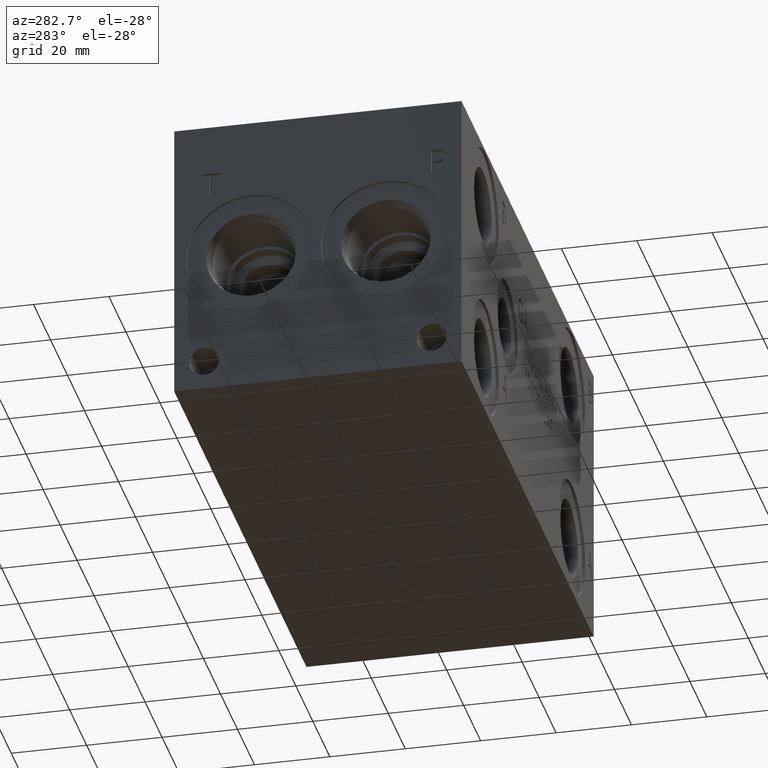
[diagram: clean part render]
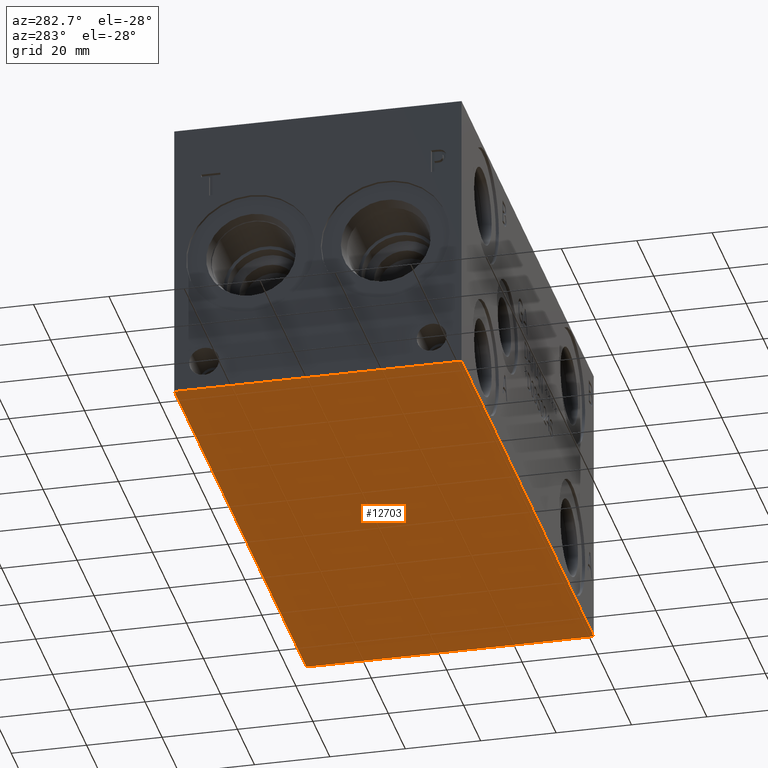
[diagram: same view with one face highlighted and labeled with its STEP entity id]
A machine part, auxiliary view. The second image highlights one B-rep face of the part: STEP entity #12703.
In plain terms, the highlighted planar face has unit normal (0, 0, 1).
Its self-contained STEP definition (entity closure, byte-faithful):
#1698=FACE_OUTER_BOUND('',#2461,.T.);
#2461=EDGE_LOOP('',(#11223,#11224,#11225,#11226));
#2736=LINE('',#18410,#3876);
#3371=LINE('',#20715,#4511);
#3430=LINE('',#20987,#4570);
#3600=LINE('',#21951,#4740);
#3876=VECTOR('',#13931,10.);
#4511=VECTOR('',#15028,10.);
#4570=VECTOR('',#15141,10.);
#4740=VECTOR('',#16241,10.);
#5050=VERTEX_POINT('',#18408);
#5051=VERTEX_POINT('',#18409);
#5562=VERTEX_POINT('',#20714);
#5620=VERTEX_POINT('',#20986);
#6412=EDGE_CURVE('',#5050,#5051,#2736,.T.);
#7173=EDGE_CURVE('',#5051,#5562,#3371,.T.);
#7256=EDGE_CURVE('',#5620,#5050,#3430,.T.);
#7707=EDGE_CURVE('',#5562,#5620,#3600,.T.);
#11223=ORIENTED_EDGE('',*,*,#6412,.F.);
#11224=ORIENTED_EDGE('',*,*,#7256,.F.);
#11225=ORIENTED_EDGE('',*,*,#7707,.F.);
#11226=ORIENTED_EDGE('',*,*,#7173,.F.);
#11581=PLANE('',#13514);
#12703=ADVANCED_FACE('',(#1698),#11581,.F.);
#13514=AXIS2_PLACEMENT_3D('',#21956,#16249,#16250);
#13931=DIRECTION('',(1.,0.,0.));
#15028=DIRECTION('',(0.,1.,0.));
#15141=DIRECTION('',(0.,-1.,0.));
#16241=DIRECTION('',(-1.,0.,0.));
#16249=DIRECTION('center_axis',(0.,0.,1.));
#16250=DIRECTION('ref_axis',(1.,0.,0.));
#18408=CARTESIAN_POINT('',(0.,0.,0.));
#18409=CARTESIAN_POINT('',(155.575,0.,0.));
#18410=CARTESIAN_POINT('',(0.,0.,0.));
#20714=CARTESIAN_POINT('',(155.575,76.2,0.));
#20715=CARTESIAN_POINT('',(155.575,0.,0.));
#20986=CARTESIAN_POINT('',(0.,76.2,0.));
#20987=CARTESIAN_POINT('',(0.,76.2,0.));
#21951=CARTESIAN_POINT('',(155.575,76.2,0.));
#21956=CARTESIAN_POINT('Origin',(77.7875,38.1,0.));